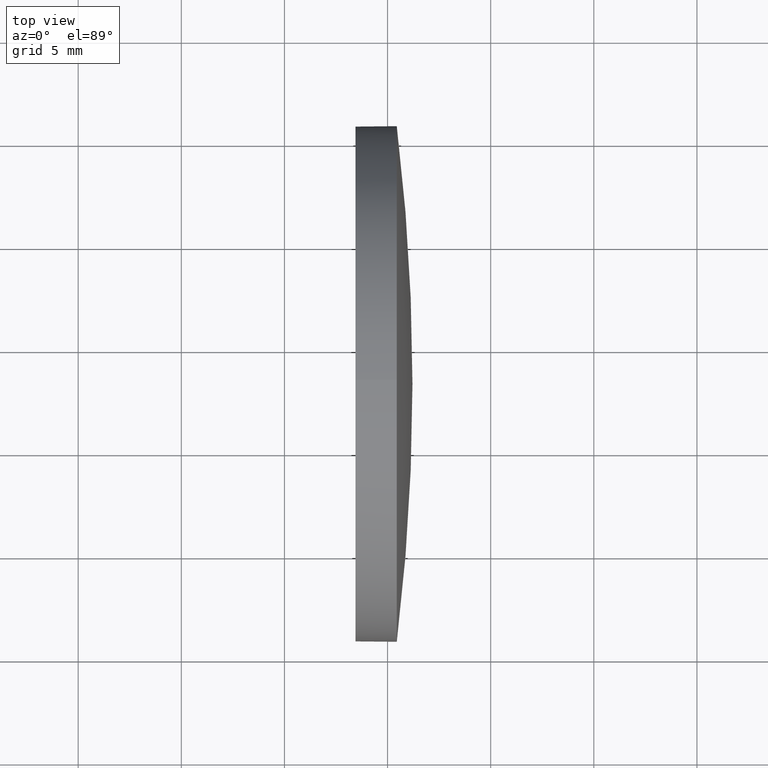
[diagram: clean part render]
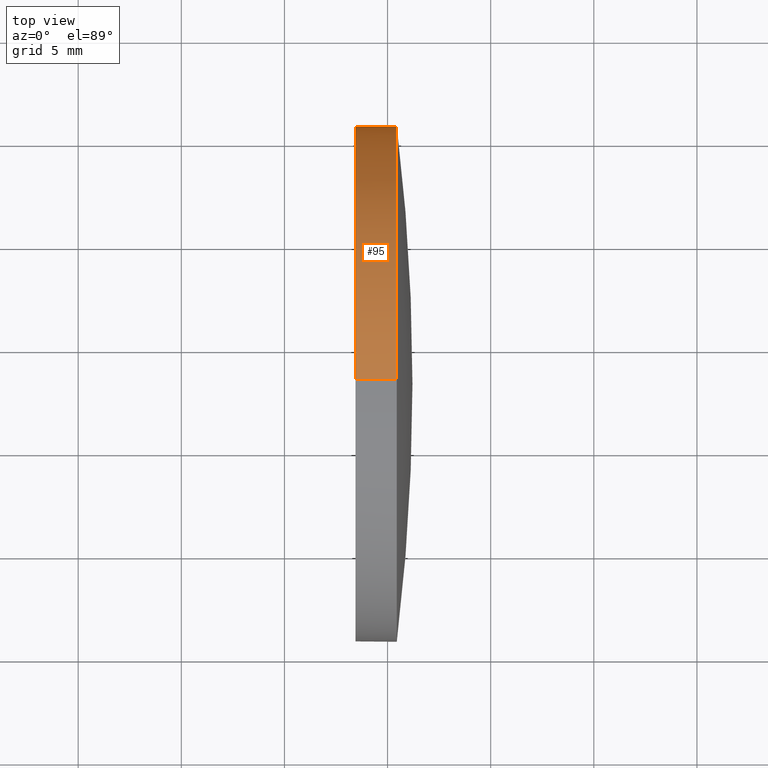
[diagram: same view with one face highlighted and labeled with its STEP entity id]
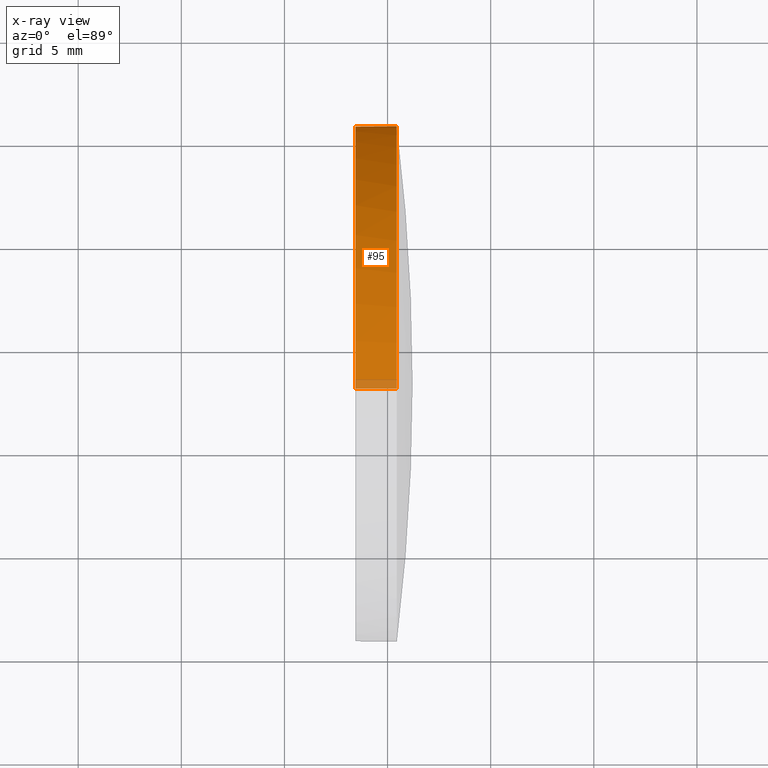
[diagram: x-ray of the same camera — body ghosted, the highlighted face saturated]
A machine part, top view. The second image highlights one B-rep face of the part: STEP entity #95.
The next image is the same camera in x-ray: the body ghosted, the highlighted face saturated — about 3% of this face is hidden behind the body in this view.
In plain terms, the highlighted cylindrical surface (partial cylindrical patch) has radius 12.5 mm, axis along (-1, -0, -0).
Its self-contained STEP definition (entity closure, byte-faithful):
#1 = CIRCLE ( 'NONE', #155, 12.49999999999999600 ) ;
#2 = VERTEX_POINT ( 'NONE', #161 ) ;
#3 = EDGE_CURVE ( 'NONE', #50, #124, #34, .T. ) ;
#8 = DIRECTION ( 'NONE',  ( 0.0000000000000000000, 0.0000000000000000000, 1.000000000000000000 ) ) ;
#12 = ORIENTED_EDGE ( 'NONE', *, *, #141, .T. ) ;
#14 = AXIS2_PLACEMENT_3D ( 'NONE', #20, #179, #18 ) ;
#18 = DIRECTION ( 'NONE',  ( 0.0000000000000000000, 0.0000000000000000000, 1.000000000000000000 ) ) ;
#19 = EDGE_CURVE ( 'NONE', #159, #2, #67, .T. ) ;
#20 = CARTESIAN_POINT ( 'NONE',  ( 405.4479230910874300, 108.2513484294471600, 0.0000000000000000000 ) ) ;
#29 = DIRECTION ( 'NONE',  ( 0.0000000000000000000, 0.0000000000000000000, 1.000000000000000000 ) ) ;
#30 = CYLINDRICAL_SURFACE ( 'NONE', #101, 12.49999999999999600 ) ;
#32 = CARTESIAN_POINT ( 'NONE',  ( 405.4479230910874300, 120.7513484294471200, 1.530808498934179500E-015 ) ) ;
#33 = CARTESIAN_POINT ( 'NONE',  ( 401.0823071883264700, 108.2513484294471600, 0.0000000000000000000 ) ) ;
#34 = LINE ( 'NONE', #174, #97 ) ;
#35 = DIRECTION ( 'NONE',  ( -1.000000000000000000, -0.0000000000000000000, -0.0000000000000000000 ) ) ;
#40 = CARTESIAN_POINT ( 'NONE',  ( 405.4479230910874300, 108.2513484294471600, 12.49999999999999600 ) ) ;
#42 = EDGE_CURVE ( 'NONE', #165, #159, #48, .T. ) ;
#48 = CIRCLE ( 'NONE', #57, 12.49999999999999600 ) ;
#50 = VERTEX_POINT ( 'NONE', #40 ) ;
#57 = AXIS2_PLACEMENT_3D ( 'NONE', #113, #130, #29 ) ;
#67 = LINE ( 'NONE', #87, #109 ) ;
#68 = ORIENTED_EDGE ( 'NONE', *, *, #157, .F. ) ;
#80 = DIRECTION ( 'NONE',  ( -1.000000000000000000, -0.0000000000000000000, -0.0000000000000000000 ) ) ;
#87 = CARTESIAN_POINT ( 'NONE',  ( 401.0823071883264700, 108.2513484294471600, -12.49999999999999600 ) ) ;
#91 = DIRECTION ( 'NONE',  ( -1.000000000000000000, -0.0000000000000000000, -0.0000000000000000000 ) ) ;
#93 = ORIENTED_EDGE ( 'NONE', *, *, #42, .T. ) ;
#95 = ADVANCED_FACE ( 'NONE', ( #100 ), #30, .T. ) ;
#97 = VECTOR ( 'NONE', #173, 1000.000000000000000 ) ;
#100 = FACE_OUTER_BOUND ( 'NONE', #102, .T. ) ;
#101 = AXIS2_PLACEMENT_3D ( 'NONE', #33, #35, #8 ) ;
#102 = EDGE_LOOP ( 'NONE', ( #93, #125, #68, #151, #12 ) ) ;
#109 = VECTOR ( 'NONE', #91, 1000.000000000000000 ) ;
#110 = CIRCLE ( 'NONE', #14, 12.49999999999999600 ) ;
#113 = CARTESIAN_POINT ( 'NONE',  ( 405.4479230910874300, 108.2513484294471600, 0.0000000000000000000 ) ) ;
#119 = CARTESIAN_POINT ( 'NONE',  ( 403.4479230910874300, 108.2513484294471600, 0.0000000000000000000 ) ) ;
#124 = VERTEX_POINT ( 'NONE', #150 ) ;
#125 = ORIENTED_EDGE ( 'NONE', *, *, #19, .T. ) ;
#130 = DIRECTION ( 'NONE',  ( -1.000000000000000000, -0.0000000000000000000, -0.0000000000000000000 ) ) ;
#141 = EDGE_CURVE ( 'NONE', #50, #165, #110, .T. ) ;
#150 = CARTESIAN_POINT ( 'NONE',  ( 403.4479230910874300, 108.2513484294471600, 12.49999999999999600 ) ) ;
#151 = ORIENTED_EDGE ( 'NONE', *, *, #3, .F. ) ;
#155 = AXIS2_PLACEMENT_3D ( 'NONE', #119, #80, #163 ) ;
#157 = EDGE_CURVE ( 'NONE', #124, #2, #1, .T. ) ;
#159 = VERTEX_POINT ( 'NONE', #176 ) ;
#161 = CARTESIAN_POINT ( 'NONE',  ( 403.4479230910874300, 108.2513484294471600, -12.49999999999999600 ) ) ;
#163 = DIRECTION ( 'NONE',  ( 0.0000000000000000000, 0.0000000000000000000, 1.000000000000000000 ) ) ;
#165 = VERTEX_POINT ( 'NONE', #32 ) ;
#173 = DIRECTION ( 'NONE',  ( -1.000000000000000000, -0.0000000000000000000, -0.0000000000000000000 ) ) ;
#174 = CARTESIAN_POINT ( 'NONE',  ( 401.0823071883264700, 108.2513484294471600, 12.49999999999999600 ) ) ;
#176 = CARTESIAN_POINT ( 'NONE',  ( 405.4479230910874300, 108.2513484294471600, -12.49999999999999600 ) ) ;
#179 = DIRECTION ( 'NONE',  ( -1.000000000000000000, -0.0000000000000000000, -0.0000000000000000000 ) ) ;